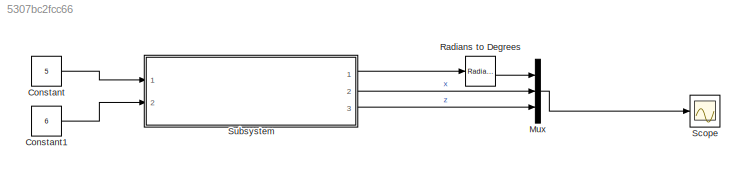
MODEL slx_5307bc2fcc66
KIND model
CONFIG AbsTol = auto
CONFIG FixedStep = auto
CONFIG MaxStep = auto
CONFIG MinStep = auto
CONFIG RelTol = 1e-3
CONFIG SampleTimeConstraint = Unconstrained
CONFIG Solver = ode45
CONFIG SolverMode = Auto
CONFIG SolverName = ode45
CONFIG StartTime = 0.0
CONFIG StopTime = 20.0
BLOCK [Constant] Constant
  Value = 5
BLOCK [Constant] Constant1
  Value = 6
BLOCK [Mux] Mux
  DisplayOption = bar
  Inputs = 3
  Ports = [3, 1]
BLOCK [Reference] Radians to Degrees  REF=simulink_extras/Transformations/Radians
to Degrees
  Ports = [1, 1]
  SourceBlock = simulink_extras/Transformations/Radians\nto Degrees
  SourceType = RadiansToDegrees
BLOCK [Scope] Scope
  Floating = off
  LegendLocations = 0.2124     0.18758     0.16631    0.098226
  NumInputPorts = 1
  Ports = [1]
  ShowLegends = on
  ZoomMode = yonly
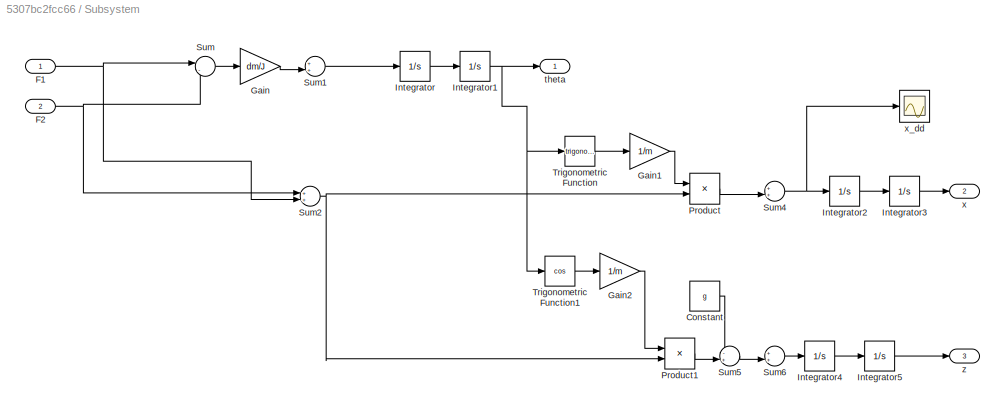
BLOCK [SubSystem] Subsystem
  Ports = [2, 3]
  RequestExecContextInheritance = off
BLOCK [Constant] Subsystem/Constant
  Value = g
BLOCK [Inport] Subsystem/F1
  IconDisplay = Port number
BLOCK [Inport] Subsystem/F2
  IconDisplay = Port number
  Port = 2
BLOCK [Gain] Subsystem/Gain
  Gain = dm/J
  OutDataTypeStr = Inherit: Inherit via internal rule
  ParamDataTypeStr = Inherit: Inherit via internal rule
  SaturateOnIntegerOverflow = off
BLOCK [Gain] Subsystem/Gain1
  Gain = 1/m
  OutDataTypeStr = Inherit: Inherit via internal rule
  ParamDataTypeStr = Inherit: Inherit via internal rule
  SaturateOnIntegerOverflow = off
BLOCK [Gain] Subsystem/Gain2
  Gain = 1/m
  OutDataTypeStr = Inherit: Inherit via internal rule
  ParamDataTypeStr = Inherit: Inherit via internal rule
  SaturateOnIntegerOverflow = off
BLOCK [Integrator] Subsystem/Integrator
  Ports = [1, 1]
BLOCK [Integrator] Subsystem/Integrator1
  Ports = [1, 1]
BLOCK [Integrator] Subsystem/Integrator2
  Ports = [1, 1]
BLOCK [Integrator] Subsystem/Integrator3
  Ports = [1, 1]
BLOCK [Integrator] Subsystem/Integrator4
  Ports = [1, 1]
BLOCK [Integrator] Subsystem/Integrator5
  Ports = [1, 1]
BLOCK [Product] Subsystem/Product
  InputSameDT = off
  OutDataTypeStr = Inherit: Inherit via internal rule
  Ports = [2, 1]
  RndMeth = Floor
  SaturateOnIntegerOverflow = off
BLOCK [Product] Subsystem/Product1
  InputSameDT = off
  OutDataTypeStr = Inherit: Inherit via internal rule
  Ports = [2, 1]
  RndMeth = Floor
  SaturateOnIntegerOverflow = off
BLOCK [Sum] Subsystem/Sum
  IconShape = round
  InputSameDT = off
  Inputs = |-+
  OutDataTypeStr = Inherit: Inherit via internal rule
  Ports = [2, 1]
  SaturateOnIntegerOverflow = off
BLOCK [Sum] Subsystem/Sum1
  IconShape = round
  InputSameDT = off
  Inputs = ++|
  OutDataTypeStr = Inherit: Inherit via internal rule
  Ports = [2, 1]
  SaturateOnIntegerOverflow = off
BLOCK [Sum] Subsystem/Sum2
  IconShape = round
  InputSameDT = off
  Inputs = ++|
  OutDataTypeStr = Inherit: Inherit via internal rule
  Ports = [2, 1]
  SaturateOnIntegerOverflow = off
BLOCK [Sum] Subsystem/Sum4
  IconShape = round
  InputSameDT = off
  Inputs = ++|
  OutDataTypeStr = Inherit: Inherit via internal rule
  Ports = [2, 1]
  SaturateOnIntegerOverflow = off
BLOCK [Sum] Subsystem/Sum5
  IconShape = round
  InputSameDT = off
  Inputs = -+|
  OutDataTypeStr = Inherit: Inherit via internal rule
  Ports = [2, 1]
  SaturateOnIntegerOverflow = off
BLOCK [Sum] Subsystem/Sum6
  IconShape = round
  InputSameDT = off
  Inputs = ++|
  OutDataTypeStr = Inherit: Inherit via internal rule
  Ports = [2, 1]
  SaturateOnIntegerOverflow = off
BLOCK [Trigonometry] Subsystem/Trigonometric Function
  Ports = [1, 1]
BLOCK [Trigonometry] Subsystem/Trigonometric Function1
  Operator = cos
  Ports = [1, 1]
BLOCK [Outport] Subsystem/theta
  IconDisplay = Port number
BLOCK [Outport] Subsystem/x
  IconDisplay = Port number
  Port = 2
BLOCK [Scope] Subsystem/x_dd
  Floating = off
  NumInputPorts = 1
  Ports = [1]
  SaveName = ScopeData1
BLOCK [Outport] Subsystem/z 
  IconDisplay = Port number
  Port = 3
LINE Constant1:1 -> Subsystem:2
LINE Constant:1 -> Subsystem:1
LINE Mux:1 -> Scope:1
LINE Radians to Degrees:1 -> Mux:1
LINE Subsystem/Constant:1 -> Subsystem/Sum5:1
NET Subsystem/F1:1 -> Subsystem/Sum2:2, Subsystem/Sum:1
NET Subsystem/F2:1 -> Subsystem/Sum2:1, Subsystem/Sum:2
LINE Subsystem/Gain1:1 -> Subsystem/Product:1
LINE Subsystem/Gain2:1 -> Subsystem/Product1:1
LINE Subsystem/Gain:1 -> Subsystem/Sum1:2
NET Subsystem/Integrator1:1 -> Subsystem/Trigonometric Function1:1, Subsystem/Trigonometric Function:1, Subsystem/theta:1
LINE Subsystem/Integrator2:1 -> Subsystem/Integrator3:1
LINE Subsystem/Integrator3:1 -> Subsystem/x:1
LINE Subsystem/Integrator4:1 -> Subsystem/Integrator5:1
LINE Subsystem/Integrator5:1 -> Subsystem/z :1
LINE Subsystem/Integrator:1 -> Subsystem/Integrator1:1
LINE Subsystem/Product1:1 -> Subsystem/Sum5:2
LINE Subsystem/Product:1 -> Subsystem/Sum4:2
LINE Subsystem/Sum1:1 -> Subsystem/Integrator:1
NET Subsystem/Sum2:1 -> Subsystem/Product1:2, Subsystem/Product:2
NET Subsystem/Sum4:1 -> Subsystem/Integrator2:1, Subsystem/x_dd:1
LINE Subsystem/Sum5:1 -> Subsystem/Sum6:2
LINE Subsystem/Sum6:1 -> Subsystem/Integrator4:1
LINE Subsystem/Sum:1 -> Subsystem/Gain:1
LINE Subsystem/Trigonometric Function1:1 -> Subsystem/Gain2:1
LINE Subsystem/Trigonometric Function:1 -> Subsystem/Gain1:1
LINE Subsystem:1 -> Radians to Degrees:1
LINE Subsystem:2 -> Mux:2
LINE Subsystem:3 -> Mux:3
note: NET lines group one-source signal fan-out (src -> all destinations, sorted); 1:1 wires keep LINE
